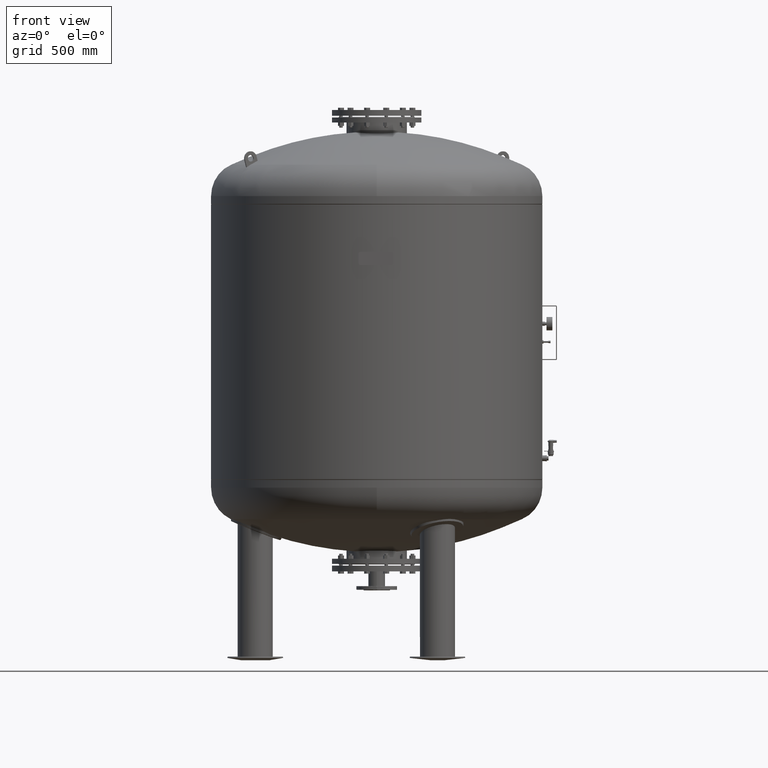
[diagram: clean part render]
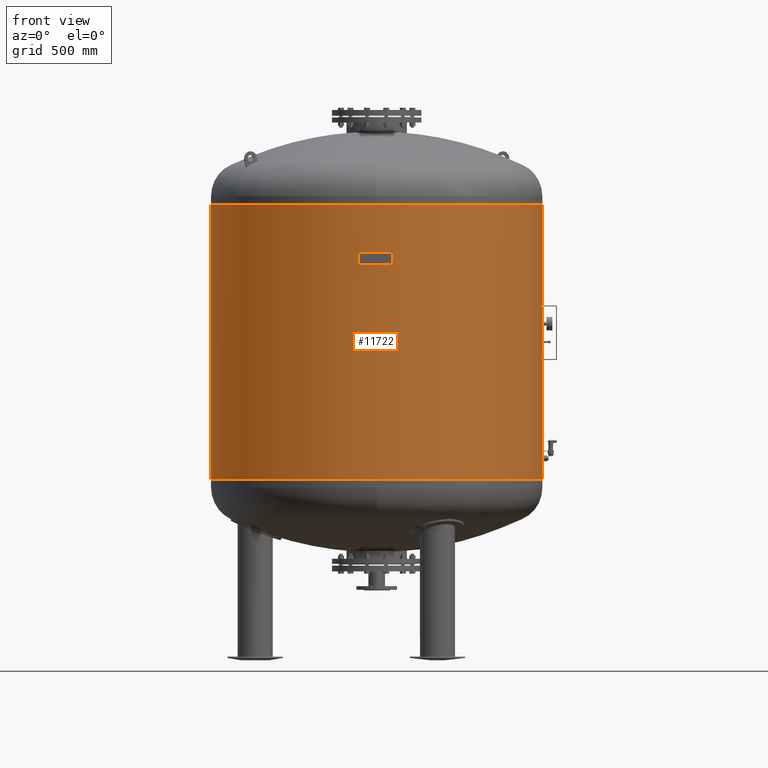
[diagram: same view with one face highlighted and labeled with its STEP entity id]
A machine part, front view. The second image highlights one B-rep face of the part: STEP entity #11722.
In plain terms, the highlighted cylindrical surface (partial cylindrical patch) has radius 750 mm, axis along (0, 0, 1).
Its self-contained STEP definition (entity closure, byte-faithful):
#11681=CARTESIAN_POINT('',(8.303931E-015,0.0,1756.0));
#11682=DIRECTION('',(2.670074E-017,0.0,1.0));
#11683=DIRECTION('',(1.0,0.0,0.0));
#11684=AXIS2_PLACEMENT_3D('',#11681,#11682,#11683);
#11685=CYLINDRICAL_SURFACE('',#11684,750.000000000000450);
#11686=CARTESIAN_POINT('',(750.000000000000570,0.0,2067.0));
#11687=VERTEX_POINT('',#11686);
#11688=CARTESIAN_POINT('',(749.999999999999890,0.0,822.999999999999770));
#11689=VERTEX_POINT('',#11688);
#11690=CARTESIAN_POINT('',(750.000000000000570,0.0,2067.0));
#11691=DIRECTION('',(0.0,0.0,-1.0));
#11692=VECTOR('',#11691,1244.000000000000200);
#11693=LINE('',#11690,#11692);
#11694=EDGE_CURVE('',#11687,#11689,#11693,.T.);
#11695=ORIENTED_EDGE('',*,*,#11694,.F.);
#11696=CARTESIAN_POINT('',(-750.000000000000450,-9.184548E-014,2067.0));
#11697=VERTEX_POINT('',#11696);
#11698=CARTESIAN_POINT('',(1.660786E-014,0.0,2067.0));
#11699=DIRECTION('',(0.0,0.0,1.0));
#11700=DIRECTION('',(1.0,0.0,0.0));
#11701=AXIS2_PLACEMENT_3D('',#11698,#11699,#11700);
#11702=CIRCLE('',#11701,750.000000000000570);
#11703=EDGE_CURVE('',#11697,#11687,#11702,.T.);
#11704=ORIENTED_EDGE('',*,*,#11703,.F.);
#11705=CARTESIAN_POINT('',(-749.999999999999890,-9.184548E-014,822.999999999999770));
#11706=VERTEX_POINT('',#11705);
#11707=CARTESIAN_POINT('',(-750.000000000000450,-9.184548E-014,2067.0));
#11708=DIRECTION('',(0.0,0.0,-1.0));
#11709=VECTOR('',#11708,1244.000000000000200);
#11710=LINE('',#11707,#11709);
#11711=EDGE_CURVE('',#11697,#11706,#11710,.T.);
#11712=ORIENTED_EDGE('',*,*,#11711,.T.);
#11713=CARTESIAN_POINT('',(-1.660786E-014,0.0,822.999999999999770));
#11714=DIRECTION('',(0.0,0.0,1.0));
#11715=DIRECTION('',(1.0,0.0,0.0));
#11716=AXIS2_PLACEMENT_3D('',#11713,#11714,#11715);
#11717=CIRCLE('',#11716,749.999999999999890);
#11718=EDGE_CURVE('',#11706,#11689,#11717,.T.);
#11719=ORIENTED_EDGE('',*,*,#11718,.T.);
#11720=EDGE_LOOP('',(#11695,#11704,#11712,#11719));
#11721=FACE_OUTER_BOUND('',#11720,.T.);
#11722=ADVANCED_FACE('',(#11721),#11685,.T.);